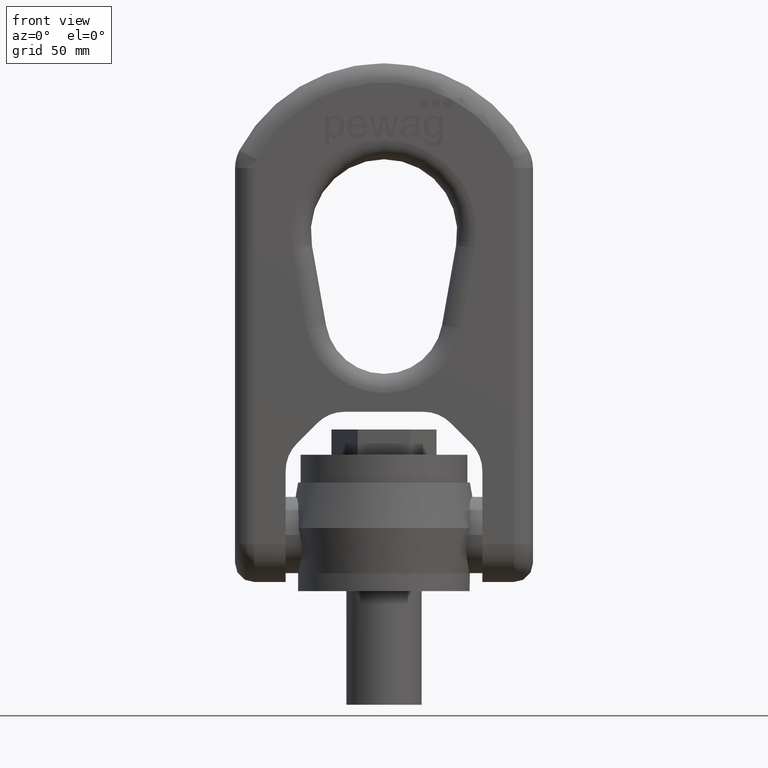
[diagram: clean part render]
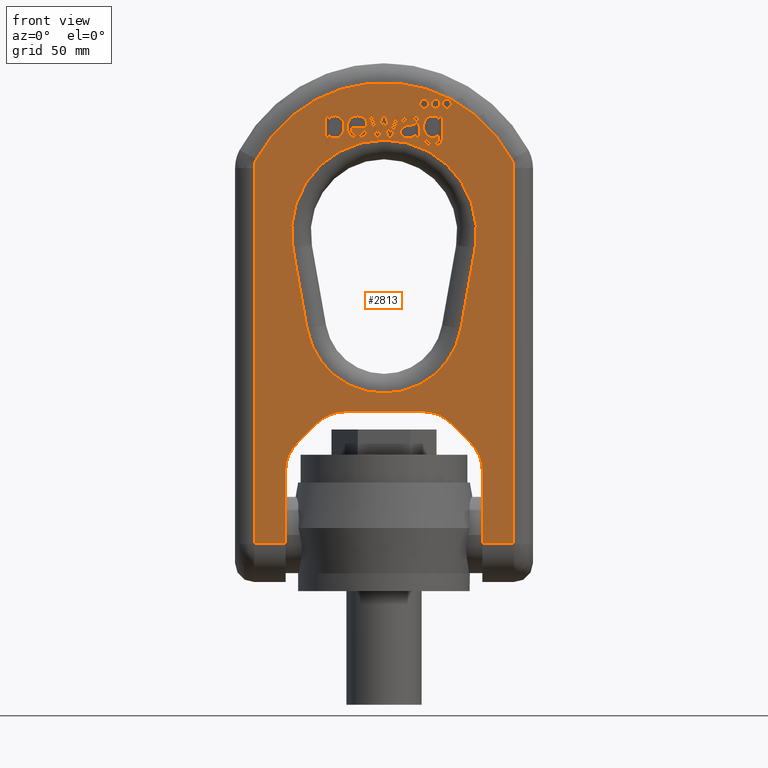
[diagram: same view with one face highlighted and labeled with its STEP entity id]
A machine part, front view. The second image highlights one B-rep face of the part: STEP entity #2813.
In plain terms, the highlighted planar face has unit normal (0, -1, 0).
Its self-contained STEP definition (entity closure, byte-faithful):
#303=B_SPLINE_CURVE_WITH_KNOTS('',3,(#7105,#7106,#7107,#7108),
 .UNSPECIFIED.,.F.,.F.,(4,4),(0.,1.),.UNSPECIFIED.);
#304=B_SPLINE_CURVE_WITH_KNOTS('',3,(#7110,#7111,#7112,#7113,#7114,#7115,
#7116,#7117,#7118,#7119),.UNSPECIFIED.,.F.,.F.,(4,2,2,2,4),(0.,0.228358481914092,
0.466434346037287,0.703045305681466,1.),.UNSPECIFIED.);
#305=B_SPLINE_CURVE_WITH_KNOTS('',3,(#7121,#7122,#7123,#7124),
 .UNSPECIFIED.,.F.,.F.,(4,4),(0.,1.),.UNSPECIFIED.);
#306=B_SPLINE_CURVE_WITH_KNOTS('',3,(#7128,#7129,#7130,#7131),
 .UNSPECIFIED.,.F.,.F.,(4,4),(0.,1.),.UNSPECIFIED.);
#307=B_SPLINE_CURVE_WITH_KNOTS('',3,(#7133,#7134,#7135,#7136),
 .UNSPECIFIED.,.F.,.F.,(4,4),(0.,1.),.UNSPECIFIED.);
#308=B_SPLINE_CURVE_WITH_KNOTS('',3,(#7138,#7139,#7140,#7141),
 .UNSPECIFIED.,.F.,.F.,(4,4),(0.,1.),.UNSPECIFIED.);
#309=B_SPLINE_CURVE_WITH_KNOTS('',3,(#7143,#7144,#7145,#7146),
 .UNSPECIFIED.,.F.,.F.,(4,4),(0.,1.),.UNSPECIFIED.);
#310=B_SPLINE_CURVE_WITH_KNOTS('',3,(#7148,#7149,#7150,#7151,#7152,#7153),
 .UNSPECIFIED.,.F.,.F.,(4,2,4),(0.,0.559782608695654,1.),.UNSPECIFIED.);
#311=B_SPLINE_CURVE_WITH_KNOTS('',3,(#7155,#7156,#7157,#7158),
 .UNSPECIFIED.,.F.,.F.,(4,4),(0.,1.),.UNSPECIFIED.);
#312=B_SPLINE_CURVE_WITH_KNOTS('',3,(#7162,#7163,#7164,#7165),
 .UNSPECIFIED.,.F.,.F.,(4,4),(0.,1.),.UNSPECIFIED.);
#313=B_SPLINE_CURVE_WITH_KNOTS('',3,(#7167,#7168,#7169,#7170,#7171,#7172),
 .UNSPECIFIED.,.F.,.F.,(4,2,4),(0.,0.476123595505615,1.),.UNSPECIFIED.);
#314=B_SPLINE_CURVE_WITH_KNOTS('',3,(#7174,#7175,#7176,#7177),
 .UNSPECIFIED.,.F.,.F.,(4,4),(0.,1.),.UNSPECIFIED.);
#315=B_SPLINE_CURVE_WITH_KNOTS('',3,(#7179,#7180,#7181,#7182,#7183,#7184,
#7185,#7186),.UNSPECIFIED.,.F.,.F.,(4,2,2,4),(0.,0.472355769230771,0.730769230769235,
1.),.UNSPECIFIED.);
#316=B_SPLINE_CURVE_WITH_KNOTS('',3,(#7188,#7189,#7190,#7191),
 .UNSPECIFIED.,.F.,.F.,(4,4),(0.,1.),.UNSPECIFIED.);
#317=B_SPLINE_CURVE_WITH_KNOTS('',3,(#7199,#7200,#7201,#7202),
 .UNSPECIFIED.,.F.,.F.,(4,4),(0.,1.),.UNSPECIFIED.);
#318=B_SPLINE_CURVE_WITH_KNOTS('',3,(#7204,#7205,#7206,#7207),
 .UNSPECIFIED.,.F.,.F.,(4,4),(0.,1.),.UNSPECIFIED.);
#319=B_SPLINE_CURVE_WITH_KNOTS('',3,(#7229,#7230,#7231,#7232),
 .UNSPECIFIED.,.F.,.F.,(4,4),(0.,1.),.UNSPECIFIED.);
#320=B_SPLINE_CURVE_WITH_KNOTS('',3,(#7242,#7243,#7244,#7245),
 .UNSPECIFIED.,.F.,.F.,(4,4),(0.,1.),.UNSPECIFIED.);
#321=B_SPLINE_CURVE_WITH_KNOTS('',3,(#7247,#7248,#7249,#7250,#7251,#7252),
 .UNSPECIFIED.,.F.,.F.,(4,2,4),(0.,0.434679334916865,1.),.UNSPECIFIED.);
#322=B_SPLINE_CURVE_WITH_KNOTS('',3,(#7254,#7255,#7256,#7257),
 .UNSPECIFIED.,.F.,.F.,(4,4),(0.,1.),.UNSPECIFIED.);
#323=B_SPLINE_CURVE_WITH_KNOTS('',3,(#7261,#7262,#7263,#7264),
 .UNSPECIFIED.,.F.,.F.,(4,4),(0.,1.),.UNSPECIFIED.);
#324=B_SPLINE_CURVE_WITH_KNOTS('',3,(#7266,#7267,#7268,#7269,#7270,#7271),
 .UNSPECIFIED.,.F.,.F.,(4,2,4),(0.,0.570469798657719,1.),.UNSPECIFIED.);
#325=B_SPLINE_CURVE_WITH_KNOTS('',3,(#7273,#7274,#7275,#7276,#7277,#7278,
#7279,#7280,#7281,#7282,#7283,#7284),.UNSPECIFIED.,.F.,.F.,(4,2,2,2,2,4),
(0.,0.122570626594233,0.245141253188469,0.495637533752417,0.746133814316361,
1.),.UNSPECIFIED.);
#326=B_SPLINE_CURVE_WITH_KNOTS('',3,(#7286,#7287,#7288,#7289),
 .UNSPECIFIED.,.F.,.F.,(4,4),(0.,1.),.UNSPECIFIED.);
#327=B_SPLINE_CURVE_WITH_KNOTS('',3,(#7290,#7291,#7292,#7293),
 .UNSPECIFIED.,.F.,.F.,(4,4),(0.,1.),.UNSPECIFIED.);
#328=B_SPLINE_CURVE_WITH_KNOTS('',3,(#7296,#7297,#7298,#7299),
 .UNSPECIFIED.,.F.,.F.,(4,4),(0.,1.),.UNSPECIFIED.);
#329=B_SPLINE_CURVE_WITH_KNOTS('',3,(#7301,#7302,#7303,#7304,#7305,#7306,
#7307,#7308,#7309,#7310),.UNSPECIFIED.,.F.,.F.,(4,2,2,2,4),(0.,0.230139294836347,
0.492074150143504,0.754009005450667,1.),.UNSPECIFIED.);
#330=B_SPLINE_CURVE_WITH_KNOTS('',3,(#7327,#7328,#7329,#7330,#7331,#7332),
 .UNSPECIFIED.,.F.,.F.,(4,2,4),(0.,0.329498767460961,1.),.UNSPECIFIED.);
#331=B_SPLINE_CURVE_WITH_KNOTS('',3,(#7335,#7336,#7337,#7338,#7339,#7340,
#7341,#7342),.UNSPECIFIED.,.F.,.F.,(4,2,2,4),(0.,0.361028692437345,0.681441656975491,
1.),.UNSPECIFIED.);
#332=B_SPLINE_CURVE_WITH_KNOTS('',3,(#7344,#7345,#7346,#7347),
 .UNSPECIFIED.,.F.,.F.,(4,4),(0.,1.),.UNSPECIFIED.);
#333=B_SPLINE_CURVE_WITH_KNOTS('',3,(#7351,#7352,#7353,#7354),
 .UNSPECIFIED.,.F.,.F.,(4,4),(0.,1.),.UNSPECIFIED.);
#334=B_SPLINE_CURVE_WITH_KNOTS('',3,(#7356,#7357,#7358,#7359,#7360,#7361),
 .UNSPECIFIED.,.F.,.F.,(4,2,4),(0.,0.55580357142857,1.),.UNSPECIFIED.);
#335=B_SPLINE_CURVE_WITH_KNOTS('',3,(#7363,#7364,#7365,#7366,#7367,#7368),
 .UNSPECIFIED.,.F.,.F.,(4,2,4),(0.,0.499999999999998,1.),.UNSPECIFIED.);
#336=B_SPLINE_CURVE_WITH_KNOTS('',3,(#7370,#7371,#7372,#7373,#7374,#7375,
#7376,#7377,#7378,#7379,#7380,#7381,#7382,#7383),.UNSPECIFIED.,.F.,.F.,
(4,2,2,2,2,2,4),(0.,0.152201346045993,0.327187324733602,0.502173303421207,
0.67631800336512,0.850462703309032,1.),.UNSPECIFIED.);
#1765=LINE('',#7036,#2073);
#1768=LINE('',#7045,#2076);
#1770=LINE('',#7054,#2078);
#1773=LINE('',#7067,#2081);
#1774=LINE('',#7069,#2082);
#1775=LINE('',#7074,#2083);
#1776=LINE('',#7077,#2084);
#1777=LINE('',#7085,#2085);
#1778=LINE('',#7086,#2086);
#1779=LINE('',#7089,#2087);
#1780=LINE('',#7093,#2088);
#1781=LINE('',#7097,#2089);
#1782=LINE('',#7101,#2090);
#1783=LINE('',#7102,#2091);
#1784=LINE('',#7126,#2092);
#1785=LINE('',#7160,#2093);
#1786=LINE('',#7192,#2094);
#1787=LINE('',#7195,#2095);
#1788=LINE('',#7197,#2096);
#1789=LINE('',#7209,#2097);
#1790=LINE('',#7211,#2098);
#1791=LINE('',#7213,#2099);
#1792=LINE('',#7215,#2100);
#1793=LINE('',#7217,#2101);
#1794=LINE('',#7219,#2102);
#1795=LINE('',#7221,#2103);
#1796=LINE('',#7223,#2104);
#1797=LINE('',#7225,#2105);
#1798=LINE('',#7227,#2106);
#1799=LINE('',#7234,#2107);
#1800=LINE('',#7236,#2108);
#1801=LINE('',#7238,#2109);
#1802=LINE('',#7239,#2110);
#1803=LINE('',#7259,#2111);
#1804=LINE('',#7312,#2112);
#1805=LINE('',#7314,#2113);
#1806=LINE('',#7316,#2114);
#1807=LINE('',#7318,#2115);
#1808=LINE('',#7320,#2116);
#1809=LINE('',#7322,#2117);
#1810=LINE('',#7324,#2118);
#1811=LINE('',#7349,#2119);
#1812=LINE('',#7385,#2120);
#1813=LINE('',#7387,#2121);
#1814=LINE('',#7389,#2122);
#2073=VECTOR('',#6164,1.);
#2076=VECTOR('',#6171,1.);
#2078=VECTOR('',#6179,1.);
#2081=VECTOR('',#6190,1.);
#2082=VECTOR('',#6193,1.);
#2083=VECTOR('',#6196,1.);
#2084=VECTOR('',#6199,1.);
#2085=VECTOR('',#6206,1.);
#2086=VECTOR('',#6207,1.);
#2087=VECTOR('',#6210,1.);
#2088=VECTOR('',#6213,1.);
#2089=VECTOR('',#6216,1.);
#2090=VECTOR('',#6219,1.);
#2091=VECTOR('',#6220,1.);
#2092=VECTOR('',#6221,1.);
#2093=VECTOR('',#6222,1.);
#2094=VECTOR('',#6223,1.);
#2095=VECTOR('',#6224,1.);
#2096=VECTOR('',#6225,1.);
#2097=VECTOR('',#6226,1.);
#2098=VECTOR('',#6227,1.);
#2099=VECTOR('',#6228,1.);
#2100=VECTOR('',#6229,1.);
#2101=VECTOR('',#6230,1.);
#2102=VECTOR('',#6231,1.);
#2103=VECTOR('',#6232,1.);
#2104=VECTOR('',#6233,1.);
#2105=VECTOR('',#6234,1.);
#2106=VECTOR('',#6235,1.);
#2107=VECTOR('',#6236,1.);
#2108=VECTOR('',#6237,1.);
#2109=VECTOR('',#6238,1.);
#2110=VECTOR('',#6239,1.);
#2111=VECTOR('',#6240,1.);
#2112=VECTOR('',#6241,1.);
#2113=VECTOR('',#6242,1.);
#2114=VECTOR('',#6243,1.);
#2115=VECTOR('',#6244,1.);
#2116=VECTOR('',#6245,1.);
#2117=VECTOR('',#6246,1.);
#2118=VECTOR('',#6247,1.);
#2119=VECTOR('',#6250,1.);
#2120=VECTOR('',#6251,1.);
#2121=VECTOR('',#6252,1.);
#2122=VECTOR('',#6253,1.);
#2685=PLANE('',#5881);
#2813=ADVANCED_FACE('',(#3087,#3088,#3089,#3090,#3091,#3092,#3093,#3094,
#3095,#3096),#2685,.T.);
#3087=FACE_BOUND('',#3173,.T.);
#3088=FACE_BOUND('',#3174,.T.);
#3089=FACE_BOUND('',#3175,.T.);
#3090=FACE_BOUND('',#3176,.T.);
#3091=FACE_BOUND('',#3177,.T.);
#3092=FACE_BOUND('',#3178,.T.);
#3093=FACE_BOUND('',#3179,.T.);
#3094=FACE_BOUND('',#3180,.T.);
#3095=FACE_BOUND('',#3181,.T.);
#3096=FACE_BOUND('',#3182,.T.);
#3173=EDGE_LOOP('',(#3537,#3538,#3539,#3540));
#3174=EDGE_LOOP('',(#3541,#3542,#3543,#3544,#3545,#3546,#3547,#3548,#3549,
#3550,#3551,#3552,#3553,#3554,#3555,#3556,#3557,#3558));
#3175=EDGE_LOOP('',(#3559,#3560,#3561,#3562,#3563,#3564,#3565,#3566,#3567,
#3568,#3569,#3570,#3571,#3572,#3573,#3574,#3575));
#3176=EDGE_LOOP('',(#3576,#3577,#3578,#3579,#3580,#3581,#3582,#3583,#3584,
#3585,#3586,#3587,#3588,#3589,#3590,#3591,#3592,#3593,#3594));
#3177=EDGE_LOOP('',(#3595,#3596,#3597,#3598,#3599,#3600,#3601,#3602,#3603));
#3178=EDGE_LOOP('',(#3604,#3605,#3606,#3607,#3608,#3609,#3610,#3611,#3612,
#3613));
#3179=EDGE_LOOP('',(#3614));
#3180=EDGE_LOOP('',(#3615,#3616,#3617,#3618,#3619,#3620,#3621,#3622,#3623,
#3624,#3625));
#3181=EDGE_LOOP('',(#3626));
#3182=EDGE_LOOP('',(#3627));
#3537=ORIENTED_EDGE('',*,*,#5176,.T.);
#3538=ORIENTED_EDGE('',*,*,#5177,.T.);
#3539=ORIENTED_EDGE('',*,*,#5178,.T.);
#3540=ORIENTED_EDGE('',*,*,#5179,.T.);
#3541=ORIENTED_EDGE('',*,*,#5175,.T.);
#3542=ORIENTED_EDGE('',*,*,#5180,.T.);
#3543=ORIENTED_EDGE('',*,*,#5181,.T.);
#3544=ORIENTED_EDGE('',*,*,#5182,.T.);
#3545=ORIENTED_EDGE('',*,*,#5183,.T.);
#3546=ORIENTED_EDGE('',*,*,#5184,.T.);
#3547=ORIENTED_EDGE('',*,*,#5169,.T.);
#3548=ORIENTED_EDGE('',*,*,#5185,.T.);
#3549=ORIENTED_EDGE('',*,*,#5161,.T.);
#3550=ORIENTED_EDGE('',*,*,#5186,.T.);
#3551=ORIENTED_EDGE('',*,*,#5187,.T.);
#3552=ORIENTED_EDGE('',*,*,#5188,.T.);
#3553=ORIENTED_EDGE('',*,*,#5189,.T.);
#3554=ORIENTED_EDGE('',*,*,#5190,.T.);
#3555=ORIENTED_EDGE('',*,*,#5191,.T.);
#3556=ORIENTED_EDGE('',*,*,#5192,.T.);
#3557=ORIENTED_EDGE('',*,*,#5193,.T.);
#3558=ORIENTED_EDGE('',*,*,#5165,.T.);
#3559=ORIENTED_EDGE('',*,*,#5194,.F.);
#3560=ORIENTED_EDGE('',*,*,#5195,.F.);
#3561=ORIENTED_EDGE('',*,*,#5196,.F.);
#3562=ORIENTED_EDGE('',*,*,#5197,.F.);
#3563=ORIENTED_EDGE('',*,*,#5198,.F.);
#3564=ORIENTED_EDGE('',*,*,#5199,.F.);
#3565=ORIENTED_EDGE('',*,*,#5200,.F.);
#3566=ORIENTED_EDGE('',*,*,#5201,.F.);
#3567=ORIENTED_EDGE('',*,*,#5202,.F.);
#3568=ORIENTED_EDGE('',*,*,#5203,.F.);
#3569=ORIENTED_EDGE('',*,*,#5204,.F.);
#3570=ORIENTED_EDGE('',*,*,#5205,.F.);
#3571=ORIENTED_EDGE('',*,*,#5206,.F.);
#3572=ORIENTED_EDGE('',*,*,#5207,.F.);
#3573=ORIENTED_EDGE('',*,*,#5208,.F.);
#3574=ORIENTED_EDGE('',*,*,#5209,.F.);
#3575=ORIENTED_EDGE('',*,*,#5210,.F.);
#3576=ORIENTED_EDGE('',*,*,#5211,.F.);
#3577=ORIENTED_EDGE('',*,*,#5212,.F.);
#3578=ORIENTED_EDGE('',*,*,#5213,.F.);
#3579=ORIENTED_EDGE('',*,*,#5214,.F.);
#3580=ORIENTED_EDGE('',*,*,#5215,.F.);
#3581=ORIENTED_EDGE('',*,*,#5216,.F.);
#3582=ORIENTED_EDGE('',*,*,#5217,.F.);
#3583=ORIENTED_EDGE('',*,*,#5218,.F.);
#3584=ORIENTED_EDGE('',*,*,#5219,.F.);
#3585=ORIENTED_EDGE('',*,*,#5220,.F.);
#3586=ORIENTED_EDGE('',*,*,#5221,.F.);
#3587=ORIENTED_EDGE('',*,*,#5222,.F.);
#3588=ORIENTED_EDGE('',*,*,#5223,.F.);
#3589=ORIENTED_EDGE('',*,*,#5224,.F.);
#3590=ORIENTED_EDGE('',*,*,#5225,.F.);
#3591=ORIENTED_EDGE('',*,*,#5226,.F.);
#3592=ORIENTED_EDGE('',*,*,#5227,.F.);
#3593=ORIENTED_EDGE('',*,*,#5228,.F.);
#3594=ORIENTED_EDGE('',*,*,#5229,.F.);
#3595=ORIENTED_EDGE('',*,*,#5230,.F.);
#3596=ORIENTED_EDGE('',*,*,#5231,.F.);
#3597=ORIENTED_EDGE('',*,*,#5232,.F.);
#3598=ORIENTED_EDGE('',*,*,#5233,.F.);
#3599=ORIENTED_EDGE('',*,*,#5234,.F.);
#3600=ORIENTED_EDGE('',*,*,#5235,.F.);
#3601=ORIENTED_EDGE('',*,*,#5236,.F.);
#3602=ORIENTED_EDGE('',*,*,#5237,.F.);
#3603=ORIENTED_EDGE('',*,*,#5238,.F.);
#3604=ORIENTED_EDGE('',*,*,#5239,.F.);
#3605=ORIENTED_EDGE('',*,*,#5240,.F.);
#3606=ORIENTED_EDGE('',*,*,#5241,.F.);
#3607=ORIENTED_EDGE('',*,*,#5242,.F.);
#3608=ORIENTED_EDGE('',*,*,#5243,.F.);
#3609=ORIENTED_EDGE('',*,*,#5244,.F.);
#3610=ORIENTED_EDGE('',*,*,#5245,.F.);
#3611=ORIENTED_EDGE('',*,*,#5246,.F.);
#3612=ORIENTED_EDGE('',*,*,#5247,.F.);
#3613=ORIENTED_EDGE('',*,*,#5248,.F.);
#3614=ORIENTED_EDGE('',*,*,#5249,.F.);
#3615=ORIENTED_EDGE('',*,*,#5250,.F.);
#3616=ORIENTED_EDGE('',*,*,#5251,.F.);
#3617=ORIENTED_EDGE('',*,*,#5252,.F.);
#3618=ORIENTED_EDGE('',*,*,#5253,.F.);
#3619=ORIENTED_EDGE('',*,*,#5254,.F.);
#3620=ORIENTED_EDGE('',*,*,#5255,.F.);
#3621=ORIENTED_EDGE('',*,*,#5256,.F.);
#3622=ORIENTED_EDGE('',*,*,#5257,.F.);
#3623=ORIENTED_EDGE('',*,*,#5258,.F.);
#3624=ORIENTED_EDGE('',*,*,#5259,.F.);
#3625=ORIENTED_EDGE('',*,*,#5260,.F.);
#3626=ORIENTED_EDGE('',*,*,#5261,.F.);
#3627=ORIENTED_EDGE('',*,*,#5262,.F.);
#4729=VERTEX_POINT('',#7037);
#4730=VERTEX_POINT('',#7038);
#4733=VERTEX_POINT('',#7046);
#4734=VERTEX_POINT('',#7047);
#4737=VERTEX_POINT('',#7055);
#4738=VERTEX_POINT('',#7056);
#4742=VERTEX_POINT('',#7066);
#4743=VERTEX_POINT('',#7070);
#4744=VERTEX_POINT('',#7071);
#4745=VERTEX_POINT('',#7073);
#4746=VERTEX_POINT('',#7075);
#4747=VERTEX_POINT('',#7078);
#4748=VERTEX_POINT('',#7080);
#4749=VERTEX_POINT('',#7082);
#4750=VERTEX_POINT('',#7084);
#4751=VERTEX_POINT('',#7088);
#4752=VERTEX_POINT('',#7090);
#4753=VERTEX_POINT('',#7092);
#4754=VERTEX_POINT('',#7094);
#4755=VERTEX_POINT('',#7096);
#4756=VERTEX_POINT('',#7098);
#4757=VERTEX_POINT('',#7100);
#4758=VERTEX_POINT('',#7103);
#4759=VERTEX_POINT('',#7104);
#4760=VERTEX_POINT('',#7109);
#4761=VERTEX_POINT('',#7120);
#4762=VERTEX_POINT('',#7125);
#4763=VERTEX_POINT('',#7127);
#4764=VERTEX_POINT('',#7132);
#4765=VERTEX_POINT('',#7137);
#4766=VERTEX_POINT('',#7142);
#4767=VERTEX_POINT('',#7147);
#4768=VERTEX_POINT('',#7154);
#4769=VERTEX_POINT('',#7159);
#4770=VERTEX_POINT('',#7161);
#4771=VERTEX_POINT('',#7166);
#4772=VERTEX_POINT('',#7173);
#4773=VERTEX_POINT('',#7178);
#4774=VERTEX_POINT('',#7187);
#4775=VERTEX_POINT('',#7193);
#4776=VERTEX_POINT('',#7194);
#4777=VERTEX_POINT('',#7196);
#4778=VERTEX_POINT('',#7198);
#4779=VERTEX_POINT('',#7203);
#4780=VERTEX_POINT('',#7208);
#4781=VERTEX_POINT('',#7210);
#4782=VERTEX_POINT('',#7212);
#4783=VERTEX_POINT('',#7214);
#4784=VERTEX_POINT('',#7216);
#4785=VERTEX_POINT('',#7218);
#4786=VERTEX_POINT('',#7220);
#4787=VERTEX_POINT('',#7222);
#4788=VERTEX_POINT('',#7224);
#4789=VERTEX_POINT('',#7226);
#4790=VERTEX_POINT('',#7228);
#4791=VERTEX_POINT('',#7233);
#4792=VERTEX_POINT('',#7235);
#4793=VERTEX_POINT('',#7237);
#4794=VERTEX_POINT('',#7240);
#4795=VERTEX_POINT('',#7241);
#4796=VERTEX_POINT('',#7246);
#4797=VERTEX_POINT('',#7253);
#4798=VERTEX_POINT('',#7258);
#4799=VERTEX_POINT('',#7260);
#4800=VERTEX_POINT('',#7265);
#4801=VERTEX_POINT('',#7272);
#4802=VERTEX_POINT('',#7285);
#4803=VERTEX_POINT('',#7294);
#4804=VERTEX_POINT('',#7295);
#4805=VERTEX_POINT('',#7300);
#4806=VERTEX_POINT('',#7311);
#4807=VERTEX_POINT('',#7313);
#4808=VERTEX_POINT('',#7315);
#4809=VERTEX_POINT('',#7317);
#4810=VERTEX_POINT('',#7319);
#4811=VERTEX_POINT('',#7321);
#4812=VERTEX_POINT('',#7323);
#4813=VERTEX_POINT('',#7326);
#4814=VERTEX_POINT('',#7333);
#4815=VERTEX_POINT('',#7334);
#4816=VERTEX_POINT('',#7343);
#4817=VERTEX_POINT('',#7348);
#4818=VERTEX_POINT('',#7350);
#4819=VERTEX_POINT('',#7355);
#4820=VERTEX_POINT('',#7362);
#4821=VERTEX_POINT('',#7369);
#4822=VERTEX_POINT('',#7384);
#4823=VERTEX_POINT('',#7386);
#4824=VERTEX_POINT('',#7388);
#4825=VERTEX_POINT('',#7391);
#4826=VERTEX_POINT('',#7393);
#5161=EDGE_CURVE('',#4729,#4730,#1765,.T.);
#5165=EDGE_CURVE('',#4733,#4734,#1768,.T.);
#5169=EDGE_CURVE('',#4737,#4738,#1770,.T.);
#5175=EDGE_CURVE('',#4734,#4742,#1773,.T.);
#5176=EDGE_CURVE('',#4743,#4744,#1774,.T.);
#5177=EDGE_CURVE('',#4744,#4745,#5763,.T.);
#5178=EDGE_CURVE('',#4745,#4746,#1775,.T.);
#5179=EDGE_CURVE('',#4746,#4743,#5764,.T.);
#5180=EDGE_CURVE('',#4742,#4747,#1776,.T.);
#5181=EDGE_CURVE('',#4747,#4748,#5765,.T.);
#5182=EDGE_CURVE('',#4748,#4749,#5766,.T.);
#5183=EDGE_CURVE('',#4749,#4750,#5767,.T.);
#5184=EDGE_CURVE('',#4750,#4737,#1777,.T.);
#5185=EDGE_CURVE('',#4738,#4729,#1778,.T.);
#5186=EDGE_CURVE('',#4730,#4751,#5768,.T.);
#5187=EDGE_CURVE('',#4751,#4752,#1779,.T.);
#5188=EDGE_CURVE('',#4752,#4753,#5769,.T.);
#5189=EDGE_CURVE('',#4753,#4754,#1780,.T.);
#5190=EDGE_CURVE('',#4754,#4755,#5770,.T.);
#5191=EDGE_CURVE('',#4755,#4756,#1781,.T.);
#5192=EDGE_CURVE('',#4756,#4757,#5771,.T.);
#5193=EDGE_CURVE('',#4757,#4733,#1782,.T.);
#5194=EDGE_CURVE('',#4758,#4759,#1783,.T.);
#5195=EDGE_CURVE('',#4760,#4758,#303,.T.);
#5196=EDGE_CURVE('',#4761,#4760,#304,.T.);
#5197=EDGE_CURVE('',#4762,#4761,#305,.T.);
#5198=EDGE_CURVE('',#4763,#4762,#1784,.T.);
#5199=EDGE_CURVE('',#4764,#4763,#306,.T.);
#5200=EDGE_CURVE('',#4765,#4764,#307,.T.);
#5201=EDGE_CURVE('',#4766,#4765,#308,.T.);
#5202=EDGE_CURVE('',#4767,#4766,#309,.T.);
#5203=EDGE_CURVE('',#4768,#4767,#310,.T.);
#5204=EDGE_CURVE('',#4769,#4768,#311,.T.);
#5205=EDGE_CURVE('',#4770,#4769,#1785,.T.);
#5206=EDGE_CURVE('',#4771,#4770,#312,.T.);
#5207=EDGE_CURVE('',#4772,#4771,#313,.T.);
#5208=EDGE_CURVE('',#4773,#4772,#314,.T.);
#5209=EDGE_CURVE('',#4774,#4773,#315,.T.);
#5210=EDGE_CURVE('',#4759,#4774,#316,.T.);
#5211=EDGE_CURVE('',#4775,#4776,#1786,.T.);
#5212=EDGE_CURVE('',#4777,#4775,#1787,.T.);
#5213=EDGE_CURVE('',#4778,#4777,#1788,.T.);
#5214=EDGE_CURVE('',#4779,#4778,#317,.T.);
#5215=EDGE_CURVE('',#4780,#4779,#318,.T.);
#5216=EDGE_CURVE('',#4781,#4780,#1789,.T.);
#5217=EDGE_CURVE('',#4782,#4781,#1790,.T.);
#5218=EDGE_CURVE('',#4783,#4782,#1791,.T.);
#5219=EDGE_CURVE('',#4784,#4783,#1792,.T.);
#5220=EDGE_CURVE('',#4785,#4784,#1793,.T.);
#5221=EDGE_CURVE('',#4786,#4785,#1794,.T.);
#5222=EDGE_CURVE('',#4787,#4786,#1795,.T.);
#5223=EDGE_CURVE('',#4788,#4787,#1796,.T.);
#5224=EDGE_CURVE('',#4789,#4788,#1797,.T.);
#5225=EDGE_CURVE('',#4790,#4789,#1798,.T.);
#5226=EDGE_CURVE('',#4791,#4790,#319,.T.);
#5227=EDGE_CURVE('',#4792,#4791,#1799,.T.);
#5228=EDGE_CURVE('',#4793,#4792,#1800,.T.);
#5229=EDGE_CURVE('',#4776,#4793,#1801,.T.);
#5230=EDGE_CURVE('',#4794,#4795,#1802,.T.);
#5231=EDGE_CURVE('',#4796,#4794,#320,.T.);
#5232=EDGE_CURVE('',#4797,#4796,#321,.T.);
#5233=EDGE_CURVE('',#4798,#4797,#322,.T.);
#5234=EDGE_CURVE('',#4799,#4798,#1803,.T.);
#5235=EDGE_CURVE('',#4800,#4799,#323,.T.);
#5236=EDGE_CURVE('',#4801,#4800,#324,.T.);
#5237=EDGE_CURVE('',#4802,#4801,#325,.T.);
#5238=EDGE_CURVE('',#4795,#4802,#326,.T.);
#5239=EDGE_CURVE('',#4803,#4804,#327,.T.);
#5240=EDGE_CURVE('',#4805,#4803,#328,.T.);
#5241=EDGE_CURVE('',#4806,#4805,#329,.T.);
#5242=EDGE_CURVE('',#4807,#4806,#1804,.T.);
#5243=EDGE_CURVE('',#4808,#4807,#1805,.T.);
#5244=EDGE_CURVE('',#4809,#4808,#1806,.T.);
#5245=EDGE_CURVE('',#4810,#4809,#1807,.T.);
#5246=EDGE_CURVE('',#4811,#4810,#1808,.T.);
#5247=EDGE_CURVE('',#4812,#4811,#1809,.T.);
#5248=EDGE_CURVE('',#4804,#4812,#1810,.T.);
#5249=EDGE_CURVE('',#4813,#4813,#5772,.T.);
#5250=EDGE_CURVE('',#4814,#4815,#330,.T.);
#5251=EDGE_CURVE('',#4816,#4814,#331,.T.);
#5252=EDGE_CURVE('',#4817,#4816,#332,.T.);
#5253=EDGE_CURVE('',#4818,#4817,#1811,.T.);
#5254=EDGE_CURVE('',#4819,#4818,#333,.T.);
#5255=EDGE_CURVE('',#4820,#4819,#334,.T.);
#5256=EDGE_CURVE('',#4821,#4820,#335,.T.);
#5257=EDGE_CURVE('',#4822,#4821,#336,.T.);
#5258=EDGE_CURVE('',#4823,#4822,#1812,.T.);
#5259=EDGE_CURVE('',#4824,#4823,#1813,.T.);
#5260=EDGE_CURVE('',#4815,#4824,#1814,.T.);
#5261=EDGE_CURVE('',#4825,#4825,#5773,.T.);
#5262=EDGE_CURVE('',#4826,#4826,#5774,.T.);
#5763=CIRCLE('',#5869,36.6);
#5764=CIRCLE('',#5870,30.9262655562737);
#5765=CIRCLE('',#5871,7.6);
#5766=CIRCLE('',#5872,57.2026315789474);
#5767=CIRCLE('',#5873,7.6);
#5768=CIRCLE('',#5874,15.2);
#5769=CIRCLE('',#5875,15.2);
#5770=CIRCLE('',#5876,15.2);
#5771=CIRCLE('',#5877,15.2);
#5772=CIRCLE('',#5878,1.74);
#5773=CIRCLE('',#5879,1.74);
#5774=CIRCLE('',#5880,1.74);
#5869=AXIS2_PLACEMENT_3D('',#7072,#6194,#6195);
#5870=AXIS2_PLACEMENT_3D('',#7076,#6197,#6198);
#5871=AXIS2_PLACEMENT_3D('',#7079,#6200,#6201);
#5872=AXIS2_PLACEMENT_3D('',#7081,#6202,#6203);
#5873=AXIS2_PLACEMENT_3D('',#7083,#6204,#6205);
#5874=AXIS2_PLACEMENT_3D('',#7087,#6208,#6209);
#5875=AXIS2_PLACEMENT_3D('',#7091,#6211,#6212);
#5876=AXIS2_PLACEMENT_3D('',#7095,#6214,#6215);
#5877=AXIS2_PLACEMENT_3D('',#7099,#6217,#6218);
#5878=AXIS2_PLACEMENT_3D('',#7325,#6248,#6249);
#5879=AXIS2_PLACEMENT_3D('',#7390,#6254,#6255);
#5880=AXIS2_PLACEMENT_3D('',#7392,#6256,#6257);
#5881=AXIS2_PLACEMENT_3D('',#7394,#6258,#6259);
#6164=DIRECTION('',(1.28498035257541E-16,0.,1.));
#6171=DIRECTION('',(1.28498035257541E-16,0.,-1.));
#6179=DIRECTION('',(1.,0.,-1.17608371252665E-15));
#6190=DIRECTION('',(1.,0.,-1.17608371252665E-15));
#6193=DIRECTION('',(-0.173648177666931,0.,0.984807753012208));
#6194=DIRECTION('',(0.,1.,0.));
#6195=DIRECTION('',(0.,0.,-1.));
#6196=DIRECTION('',(-0.173648177666931,0.,-0.984807753012208));
#6197=DIRECTION('',(0.,1.,0.));
#6198=DIRECTION('',(0.,0.,-1.));
#6199=DIRECTION('',(-8.28524645242654E-17,0.,1.));
#6200=DIRECTION('',(0.,-1.,0.));
#6201=DIRECTION('',(0.,0.,-0.999999999999999));
#6202=DIRECTION('',(0.,-1.,0.));
#6203=DIRECTION('',(0.,0.,-1.));
#6204=DIRECTION('',(0.,-1.,0.));
#6205=DIRECTION('',(0.,0.,-0.999999999999999));
#6206=DIRECTION('',(-8.28524645242654E-17,0.,-1.));
#6207=DIRECTION('',(1.28498035257541E-16,0.,1.));
#6208=DIRECTION('',(0.,1.,0.));
#6209=DIRECTION('',(0.,0.,-1.));
#6210=DIRECTION('',(0.707106781186548,0.,0.707106781186547));
#6211=DIRECTION('',(0.,1.,0.));
#6212=DIRECTION('',(0.,0.,-1.));
#6213=DIRECTION('',(1.,0.,0.));
#6214=DIRECTION('',(0.,1.,0.));
#6215=DIRECTION('',(0.,0.,-1.));
#6216=DIRECTION('',(0.707106781186548,0.,-0.707106781186547));
#6217=DIRECTION('',(0.,1.,0.));
#6218=DIRECTION('',(0.,0.,-1.));
#6219=DIRECTION('',(1.28498035257541E-16,0.,-1.));
#6220=DIRECTION('',(1.,0.,0.));
#6221=DIRECTION('',(-0.989370262977938,0.,-0.14541830261341));
#6222=DIRECTION('',(0.991928985003781,0.,-0.126794671454947));
#6223=DIRECTION('',(0.304245570453574,0.,0.952593634693923));
#6224=DIRECTION('',(1.,0.,0.));
#6225=DIRECTION('',(0.259135455314436,0.,-0.965840988879112));
#6226=DIRECTION('',(1.,0.,0.));
#6227=DIRECTION('',(0.254367653151694,0.,0.967107593305988));
#6228=DIRECTION('',(1.,0.,0.));
#6229=DIRECTION('',(0.298320908470945,0.,-0.954465628280595));
#6230=DIRECTION('',(-1.,0.,0.));
#6231=DIRECTION('',(-0.269463722620021,0.,0.963010541059526));
#6232=DIRECTION('',(-0.247736970080365,0.,-0.968827329122894));
#6233=DIRECTION('',(-0.266059563516178,0.,-0.96395659065208));
#6234=DIRECTION('',(-1.,0.,0.));
#6235=DIRECTION('',(-0.253070161005813,0.,0.96744792811215));
#6236=DIRECTION('',(-1.,0.,0.));
#6237=DIRECTION('',(-0.287282618696352,0.,-0.957845862858407));
#6238=DIRECTION('',(-1.,0.,0.));
#6239=DIRECTION('',(1.,0.,0.));
#6240=DIRECTION('',(-0.992687288142562,0.,0.120714323757234));
#6241=DIRECTION('',(1.,0.,0.));
#6242=DIRECTION('',(0.,0.,1.));
#6243=DIRECTION('',(1.,0.,0.));
#6244=DIRECTION('',(0.,0.,-1.));
#6245=DIRECTION('',(-1.,0.,0.));
#6246=DIRECTION('',(0.,0.,1.));
#6247=DIRECTION('',(-1.,0.,0.));
#6248=DIRECTION('',(0.,-1.,0.));
#6249=DIRECTION('',(0.,0.,-0.999999999999994));
#6250=DIRECTION('',(-0.988666662925712,0.,0.150127377980622));
#6251=DIRECTION('',(-1.,0.,0.));
#6252=DIRECTION('',(0.,0.,-1.));
#6253=DIRECTION('',(-1.,0.,0.));
#6254=DIRECTION('',(0.,-1.,0.));
#6255=DIRECTION('',(0.,0.,-0.999999999999994));
#6256=DIRECTION('',(0.,-1.,0.));
#6257=DIRECTION('',(0.,0.,-0.999999999999994));
#6258=DIRECTION('',(0.,-1.,0.));
#6259=DIRECTION('',(0.,0.,-1.));
#7036=CARTESIAN_POINT('',(-38.94,-15.2,144.197368421053));
#7037=CARTESIAN_POINT('',(-38.94,-15.2,22.2));
#7038=CARTESIAN_POINT('',(-38.94,-15.2,47.703953851929));
#7045=CARTESIAN_POINT('',(38.94,-15.2,144.197368421053));
#7046=CARTESIAN_POINT('',(38.94,-15.2,22.2));
#7047=CARTESIAN_POINT('',(38.94,-15.2,18.7));
#7054=CARTESIAN_POINT('',(59.,-15.2,18.6999999999999));
#7055=CARTESIAN_POINT('',(-51.4,-15.2,18.7000000000001));
#7056=CARTESIAN_POINT('',(-38.94,-15.1999999999999,18.7));
#7066=CARTESIAN_POINT('',(51.4,-15.2,18.6999999999999));
#7067=CARTESIAN_POINT('',(59.,-15.2,18.6999999999999));
#7069=CARTESIAN_POINT('',(-36.0439637602468,-15.2,135.64447669739));
#7070=CARTESIAN_POINT('',(-30.4564260915328,-15.2,103.955975900383));
#7071=CARTESIAN_POINT('',(-36.0439637602468,-15.2,135.64447669739));
#7072=CARTESIAN_POINT('',(0.,-15.2,142.));
#7073=CARTESIAN_POINT('',(36.0439637602468,-15.2,135.64447669739));
#7074=CARTESIAN_POINT('',(30.4564260915328,-15.2,103.955975900383));
#7075=CARTESIAN_POINT('',(30.4564260915328,-15.2,103.955975900383));
#7076=CARTESIAN_POINT('',(0.,-15.2,109.326265556274));
#7077=CARTESIAN_POINT('',(51.4,-15.2,167.477855090295));
#7078=CARTESIAN_POINT('',(51.4,-15.2,167.477855090295));
#7079=CARTESIAN_POINT('',(43.8,-15.2,167.477855090295));
#7080=CARTESIAN_POINT('',(50.5109342670699,-15.2,171.044837184877));
#7081=CARTESIAN_POINT('',(0.,-15.2,144.197368421053));
#7082=CARTESIAN_POINT('',(-50.5109342670699,-15.2,171.044837184877));
#7083=CARTESIAN_POINT('',(-43.8,-15.2,167.477855090295));
#7084=CARTESIAN_POINT('',(-51.4,-15.2,167.477855090295));
#7085=CARTESIAN_POINT('',(-51.4,-15.2,18.7000000000001));
#7086=CARTESIAN_POINT('',(-38.94,-15.2,144.197368421053));
#7087=CARTESIAN_POINT('',(-23.74,-15.2,47.703953851929));
#7088=CARTESIAN_POINT('',(-34.4880230740355,-15.2,58.4519769259645));
#7089=CARTESIAN_POINT('',(25.6286842105263,-15.2,118.568684210526));
#7090=CARTESIAN_POINT('',(-26.3919769259645,-15.2,66.5480230740355));
#7091=CARTESIAN_POINT('',(-15.6439538519289,-15.2,55.8));
#7092=CARTESIAN_POINT('',(-15.6439538519289,-15.2,71.));
#7093=CARTESIAN_POINT('',(0.,-15.2,71.));
#7094=CARTESIAN_POINT('',(15.6439538519289,-15.2,71.));
#7095=CARTESIAN_POINT('',(15.6439538519289,-15.2,55.8));
#7096=CARTESIAN_POINT('',(26.3919769259645,-15.2,66.5480230740355));
#7097=CARTESIAN_POINT('',(-25.6286842105263,-15.2,118.568684210526));
#7098=CARTESIAN_POINT('',(34.4880230740355,-15.2,58.4519769259645));
#7099=CARTESIAN_POINT('',(23.74,-15.2,47.703953851929));
#7100=CARTESIAN_POINT('',(38.94,-15.2,47.703953851929));
#7101=CARTESIAN_POINT('',(38.94,-15.2,144.197368421053));
#7102=CARTESIAN_POINT('',(0.,-15.2,179.6));
#7103=CARTESIAN_POINT('',(12.9187479664216,-15.2,179.6));
#7104=CARTESIAN_POINT('',(14.4405544348279,-15.2,179.6));
#7105=CARTESIAN_POINT('',(12.6198216958418,-15.2,180.635661294449));
#7106=CARTESIAN_POINT('',(12.6771913841348,-15.2,180.208339728831));
#7107=CARTESIAN_POINT('',(12.7768334743281,-15.2,179.864108467639));
#7108=CARTESIAN_POINT('',(12.9187479664216,-15.2,179.6));
#7109=CARTESIAN_POINT('',(12.6198216958418,-15.2,180.635661294449));
#7110=CARTESIAN_POINT('',(7.30859634281253,-15.2,183.543821949348));
#7111=CARTESIAN_POINT('',(6.80736643456759,-15.2,183.092760296751));
#7112=CARTESIAN_POINT('',(6.55675148044512,-15.2,182.520030698388));
#7113=CARTESIAN_POINT('',(6.55675148044512,-15.2,181.095625479662));
#7114=CARTESIAN_POINT('',(6.81642480640334,-15.2,180.51102583781));
#7115=CARTESIAN_POINT('',(7.85794285415135,-15.2,179.623511484553));
#7116=CARTESIAN_POINT('',(8.57072948526064,-15.2,179.401176771553));
#7117=CARTESIAN_POINT('',(10.5998047764691,-15.2,179.401176771553));
#7118=CARTESIAN_POINT('',(11.6475564521377,-15.2,179.813660782809));
#7119=CARTESIAN_POINT('',(12.6198216958418,-15.2,180.635661294449));
#7120=CARTESIAN_POINT('',(7.30859634281253,-15.2,183.543821949348));
#7121=CARTESIAN_POINT('',(9.92344634606626,-15.2,184.442977743669));
#7122=CARTESIAN_POINT('',(8.68244940456824,-15.2,184.294602200051));
#7123=CARTESIAN_POINT('',(7.81284570833606,-15.2,183.994883601944));
#7124=CARTESIAN_POINT('',(7.30859634281253,-15.2,183.543821949348));
#7125=CARTESIAN_POINT('',(9.92344634606626,-15.2,184.442977743669));
#7126=CARTESIAN_POINT('',(-5.58039222325712,-15.2,182.164213186952));
#7127=CARTESIAN_POINT('',(11.2761632068719,-15.2,184.641800972116));
#7128=CARTESIAN_POINT('',(12.5231990629271,-15.2,184.932617037606));
#7129=CARTESIAN_POINT('',(12.1940782195614,-15.2,184.816884113584));
#7130=CARTESIAN_POINT('',(11.7804125723954,-15.2,184.718956254797));
#7131=CARTESIAN_POINT('',(11.2761632068719,-15.2,184.641800972116));
#7132=CARTESIAN_POINT('',(12.5231990629271,-15.2,184.932617037606));
#7133=CARTESIAN_POINT('',(12.4839461183055,-15.2,185.837707853671));
#7134=CARTESIAN_POINT('',(12.5081017765341,-15.2,185.662624712203));
#7135=CARTESIAN_POINT('',(12.5231990629271,-15.2,185.359938603223));
#7136=CARTESIAN_POINT('',(12.5231990629271,-15.2,184.932617037606));
#7137=CARTESIAN_POINT('',(12.4839461183055,-15.2,185.837707853671));
#7138=CARTESIAN_POINT('',(12.2454089932973,-15.2,186.389664875927));
#7139=CARTESIAN_POINT('',(12.3752456562764,-15.2,186.199744180097));
#7140=CARTESIAN_POINT('',(12.4567710027982,-15.2,186.015758506012));
#7141=CARTESIAN_POINT('',(12.4839461183055,-15.2,185.837707853671));
#7142=CARTESIAN_POINT('',(12.2454089932973,-15.2,186.389664875927));
#7143=CARTESIAN_POINT('',(11.6143424220733,-15.2,186.846661550269));
#7144=CARTESIAN_POINT('',(11.9042103208173,-15.2,186.730928626247));
#7145=CARTESIAN_POINT('',(12.1125528730396,-15.2,186.579585571758));
#7146=CARTESIAN_POINT('',(12.2454089932973,-15.2,186.389664875927));
#7147=CARTESIAN_POINT('',(11.6143424220733,-15.2,186.846661550269));
#7148=CARTESIAN_POINT('',(8.96929784603372,-15.2,186.680480941417));
#7149=CARTESIAN_POINT('',(9.3316327194638,-15.2,186.908979278588));
#7150=CARTESIAN_POINT('',(9.82380425587298,-15.2,187.021744691737));
#7151=CARTESIAN_POINT('',(10.9349645343919,-15.2,187.021744691737));
#7152=CARTESIAN_POINT('',(11.3244745233292,-15.2,186.965361985162));
#7153=CARTESIAN_POINT('',(11.6143424220733,-15.2,186.846661550269));
#7154=CARTESIAN_POINT('',(8.96929784603372,-15.2,186.680480941417));
#7155=CARTESIAN_POINT('',(8.22349189822348,-15.2,185.416321309798));
#7156=CARTESIAN_POINT('',(8.35634801848117,-15.2,186.033563571246));
#7157=CARTESIAN_POINT('',(8.60696297260364,-15.2,186.454950115119));
#7158=CARTESIAN_POINT('',(8.96929784603372,-15.2,186.680480941417));
#7159=CARTESIAN_POINT('',(8.22349189822348,-15.2,185.416321309798));
#7160=CARTESIAN_POINT('',(5.31636985581136,-15.2,185.787928138331));
#7161=CARTESIAN_POINT('',(6.80736643456759,-15.2,185.597339473011));
#7162=CARTESIAN_POINT('',(8.00609097416543,-15.2,187.535124072653));
#7163=CARTESIAN_POINT('',(7.36294657382704,-15.2,187.104834996163));
#7164=CARTESIAN_POINT('',(6.96135875577537,-15.2,186.457917625991));
#7165=CARTESIAN_POINT('',(6.80736643456759,-15.2,185.597339473011));
#7166=CARTESIAN_POINT('',(8.00609097416543,-15.2,187.535124072653));
#7167=CARTESIAN_POINT('',(12.9217674237001,-15.2,187.736914811972));
#7168=CARTESIAN_POINT('',(12.4416737164053,-15.2,188.036633410079));
#7169=CARTESIAN_POINT('',(11.6868093967593,-15.2,188.185008953697));
#7170=CARTESIAN_POINT('',(9.53695581440751,-15.2,188.185008953697));
#7171=CARTESIAN_POINT('',(8.64923537450382,-15.2,187.968380660015));
#7172=CARTESIAN_POINT('',(8.00609097416543,-15.2,187.535124072653));
#7173=CARTESIAN_POINT('',(12.9217674237001,-15.2,187.736914811972));
#7174=CARTESIAN_POINT('',(13.8064684063253,-15.2,186.656740854439));
#7175=CARTESIAN_POINT('',(13.6977679442962,-15.2,187.081094909184));
#7176=CARTESIAN_POINT('',(13.401861130995,-15.2,187.440163724738));
#7177=CARTESIAN_POINT('',(12.9217674237001,-15.2,187.736914811972));
#7178=CARTESIAN_POINT('',(13.8064684063253,-15.2,186.656740854439));
#7179=CARTESIAN_POINT('',(14.0419860740548,-15.2,180.766231772832));
#7180=CARTESIAN_POINT('',(13.9936747575975,-15.2,181.163878229726));
#7181=CARTESIAN_POINT('',(13.9725385566474,-15.2,181.947301100026));
#7182=CARTESIAN_POINT('',(13.9725385566474,-15.2,183.751547710412));
#7183=CARTESIAN_POINT('',(13.9725385566474,-15.2,184.389562547966));
#7184=CARTESIAN_POINT('',(13.9725385566474,-15.2,185.692299820926));
#7185=CARTESIAN_POINT('',(13.9181883256329,-15.2,186.235354310565));
#7186=CARTESIAN_POINT('',(13.8064684063253,-15.2,186.656740854439));
#7187=CARTESIAN_POINT('',(14.0419860740548,-15.2,180.766231772832));
#7188=CARTESIAN_POINT('',(14.4405544348279,-15.2,179.6));
#7189=CARTESIAN_POINT('',(14.2201340534913,-15.2,179.97984139166));
#7190=CARTESIAN_POINT('',(14.0872779332336,-15.2,180.368585315938));
#7191=CARTESIAN_POINT('',(14.0419860740548,-15.2,180.766231772832));
#7192=CARTESIAN_POINT('',(-7.39584713905941,-15.2,146.559502336144));
#7193=CARTESIAN_POINT('',(3.15684258475955,-15.2,179.6));
#7194=CARTESIAN_POINT('',(5.83812064814213,-15.2,187.995088257867));
#7195=CARTESIAN_POINT('',(0.,-15.2,179.6));
#7196=CARTESIAN_POINT('',(1.65315286002473,-15.2,179.6));
#7197=CARTESIAN_POINT('',(10.4028413412528,-15.2,146.988454177993));
#7198=CARTESIAN_POINT('',(0.300435999219107,-15.2,184.641800972116));
#7199=CARTESIAN_POINT('',(0.131346391618404,-15.2,185.321360961883));
#7200=CARTESIAN_POINT('',(0.237027396368844,-15.2,184.867331798414));
#7201=CARTESIAN_POINT('',(0.294397084661941,-15.2,184.638833461243));
#7202=CARTESIAN_POINT('',(0.300435999219107,-15.2,184.641800972116));
#7203=CARTESIAN_POINT('',(0.131346391618404,-15.2,185.321360961883));
#7204=CARTESIAN_POINT('',(-0.0286848441465452,-15.2,186.063238679969));
#7205=CARTESIAN_POINT('',(-0.0286848441465452,-15.2,186.021693527756));
#7206=CARTESIAN_POINT('',(0.0226459295893824,-15.2,185.775390125352));
#7207=CARTESIAN_POINT('',(0.131346391618404,-15.2,185.321360961883));
#7208=CARTESIAN_POINT('',(-0.0286848441465452,-15.2,186.063238679969));
#7209=CARTESIAN_POINT('',(0.,-15.2,186.063238679969));
#7210=CARTESIAN_POINT('',(-0.0618988742109707,-15.2,186.063238679969));
#7211=CARTESIAN_POINT('',(-10.3569351337166,-15.2,146.921438940241));
#7212=CARTESIAN_POINT('',(-1.76185332205375,-15.2,179.6));
#7213=CARTESIAN_POINT('',(0.,-15.2,179.6));
#7214=CARTESIAN_POINT('',(-3.27460141862432,-15.2,179.6));
#7215=CARTESIAN_POINT('',(7.09726392401402,-15.2,146.415638161456));
#7216=CARTESIAN_POINT('',(-5.8985097937138,-15.2,187.995088257867));
#7217=CARTESIAN_POINT('',(0.,-15.2,187.995088257867));
#7218=CARTESIAN_POINT('',(-4.39482006897898,-15.2,187.995088257867));
#7219=CARTESIAN_POINT('',(7.28964174167136,-15.2,146.237111410902));
#7220=CARTESIAN_POINT('',(-2.53483438537125,-15.2,181.347863903812));
#7221=CARTESIAN_POINT('',(-11.2959143734573,-15.2,147.085824926198));
#7222=CARTESIAN_POINT('',(-2.24496648662719,-15.2,182.481453057048));
#7223=CARTESIAN_POINT('',(-11.9047646922831,-15.2,147.483176649874));
#7224=CARTESIAN_POINT('',(-0.72316001822086,-15.2,187.995088257867));
#7225=CARTESIAN_POINT('',(0.,-15.2,187.995088257867));
#7226=CARTESIAN_POINT('',(0.768451877399625,-15.2,187.995088257867));
#7227=CARTESIAN_POINT('',(11.4423289872753,-15.2,147.190513535066));
#7228=CARTESIAN_POINT('',(1.91886510054012,-15.2,183.59723714505));
#7229=CARTESIAN_POINT('',(2.4502895815709,-15.2,181.531849577897));
#7230=CARTESIAN_POINT('',(2.41707555150648,-15.2,181.695062675876));
#7231=CARTESIAN_POINT('',(2.24194702934861,-15.2,182.38352519826));
#7232=CARTESIAN_POINT('',(1.91886510054012,-15.2,183.59723714505));
#7233=CARTESIAN_POINT('',(2.4502895815709,-15.2,181.531849577897));
#7234=CARTESIAN_POINT('',(0.,-15.2,181.531849577897));
#7235=CARTESIAN_POINT('',(2.48350361163532,-15.2,181.531849577897));
#7236=CARTESIAN_POINT('',(-7.99488449101753,-15.2,146.595239980366));
#7237=CARTESIAN_POINT('',(4.42199518448624,-15.2,187.995088257867));
#7238=CARTESIAN_POINT('',(0.,-15.2,187.995088257867));
#7239=CARTESIAN_POINT('',(0.,-15.2,183.436991557943));
#7240=CARTESIAN_POINT('',(-13.024428971172,-15.2,183.436991557943));
#7241=CARTESIAN_POINT('',(-6.62317954057395,-15.2,183.436991557943));
#7242=CARTESIAN_POINT('',(-12.2152144205115,-15.2,181.309286262471));
#7243=CARTESIAN_POINT('',(-12.6953081278063,-15.2,181.798925556408));
#7244=CARTESIAN_POINT('',(-12.9640398256003,-15.2,182.508160654899));
#7245=CARTESIAN_POINT('',(-13.024428971172,-15.2,183.436991557943));
#7246=CARTESIAN_POINT('',(-12.2152144205115,-15.2,181.309286262471));
#7247=CARTESIAN_POINT('',(-9.02364807704821,-15.2,181.00363264262));
#7248=CARTESIAN_POINT('',(-9.39806077959263,-15.2,180.715784088002));
#7249=CARTESIAN_POINT('',(-9.86305720049456,-15.2,180.573343566129));
#7250=CARTESIAN_POINT('',(-11.1342487147784,-15.2,180.573343566129));
#7251=CARTESIAN_POINT('',(-11.7351207132166,-15.2,180.816679457662));
#7252=CARTESIAN_POINT('',(-12.2152144205115,-15.2,181.309286262471));
#7253=CARTESIAN_POINT('',(-9.02364807704821,-15.2,181.00363264262));
#7254=CARTESIAN_POINT('',(-8.16008329537319,-15.2,182.306369915579));
#7255=CARTESIAN_POINT('',(-8.35936747575974,-15.2,181.7247377846));
#7256=CARTESIAN_POINT('',(-8.64621591722522,-15.2,181.291481197237));
#7257=CARTESIAN_POINT('',(-9.02364807704821,-15.2,181.00363264262));
#7258=CARTESIAN_POINT('',(-8.16008329537319,-15.2,182.306369915579));
#7259=CARTESIAN_POINT('',(4.44775334984218,-15.2,180.773211898097));
#7260=CARTESIAN_POINT('',(-6.67149085703129,-15.2,182.125351752366));
#7261=CARTESIAN_POINT('',(-8.00005205960824,-15.2,180.107444359171));
#7262=CARTESIAN_POINT('',(-7.35690765926986,-15.2,180.576311077002));
#7263=CARTESIAN_POINT('',(-6.91304743931801,-15.2,181.246968534152));
#7264=CARTESIAN_POINT('',(-6.67149085703129,-15.2,182.125351752366));
#7265=CARTESIAN_POINT('',(-8.00005205960824,-15.2,180.107444359171));
#7266=CARTESIAN_POINT('',(-13.4229973319451,-15.2,180.56147352264));
#7267=CARTESIAN_POINT('',(-12.7013470423635,-15.2,179.786953184958));
#7268=CARTESIAN_POINT('',(-11.6988872258736,-15.2,179.401176771553));
#7269=CARTESIAN_POINT('',(-9.44939155332855,-15.2,179.401176771553));
#7270=CARTESIAN_POINT('',(-8.64319645994663,-15.2,179.635610130468));
#7271=CARTESIAN_POINT('',(-8.00005205960824,-15.2,180.107444359171));
#7272=CARTESIAN_POINT('',(-13.4229973319451,-15.2,180.56147352264));
#7273=CARTESIAN_POINT('',(-7.22707099629075,-15.2,186.407469941161));
#7274=CARTESIAN_POINT('',(-7.62865881434242,-15.2,187.054387311333));
#7275=CARTESIAN_POINT('',(-8.12083035075161,-15.2,187.511383985674));
#7276=CARTESIAN_POINT('',(-9.27426303117069,-15.2,188.051470964441));
#7277=CARTESIAN_POINT('',(-9.8751350296089,-15.2,188.185008953697));
#7278=CARTESIAN_POINT('',(-11.7683347432811,-15.2,188.185008953697));
#7279=CARTESIAN_POINT('',(-12.755697273378,-15.2,187.772524942441));
#7280=CARTESIAN_POINT('',(-14.156725450641,-15.2,186.128523919161));
#7281=CARTESIAN_POINT('',(-14.5069824949567,-15.2,185.054284983372));
#7282=CARTESIAN_POINT('',(-14.5069824949567,-15.2,182.389460220005));
#7283=CARTESIAN_POINT('',(-14.1446476215266,-15.2,181.33302634945));
#7284=CARTESIAN_POINT('',(-13.4229973319451,-15.2,180.56147352264));
#7285=CARTESIAN_POINT('',(-7.22707099629075,-15.2,186.407469941161));
#7286=CARTESIAN_POINT('',(-6.62317954057395,-15.2,183.436991557943));
#7287=CARTESIAN_POINT('',(-6.62317954057395,-15.2,184.772371450499));
#7288=CARTESIAN_POINT('',(-6.82548317823908,-15.2,185.763520081862));
#7289=CARTESIAN_POINT('',(-7.22707099629075,-15.2,186.407469941161));
#7290=CARTESIAN_POINT('',(-19.4075616580985,-15.2,188.185008953697));
#7291=CARTESIAN_POINT('',(-20.4915468211102,-15.2,188.185008953697));
#7292=CARTESIAN_POINT('',(-21.3068002863278,-15.2,187.760654898951));
#7293=CARTESIAN_POINT('',(-21.8472831391944,-15.2,186.91194678946));
#7294=CARTESIAN_POINT('',(-19.4075616580985,-15.2,188.185008953697));
#7295=CARTESIAN_POINT('',(-21.8472831391944,-15.2,186.91194678946));
#7296=CARTESIAN_POINT('',(-16.7504392529446,-15.2,186.986134561269));
#7297=CARTESIAN_POINT('',(-17.4026420251188,-15.2,187.78439498593));
#7298=CARTESIAN_POINT('',(-18.2873430077439,-15.2,188.185008953697));
#7299=CARTESIAN_POINT('',(-19.4075616580985,-15.2,188.185008953697));
#7300=CARTESIAN_POINT('',(-16.7504392529446,-15.2,186.986134561269));
#7301=CARTESIAN_POINT('',(-21.7114075616581,-15.2,180.478383218214));
#7302=CARTESIAN_POINT('',(-21.1588468796772,-15.2,179.760245587107));
#7303=CARTESIAN_POINT('',(-20.4220993037027,-15.2,179.401176771553));
#7304=CARTESIAN_POINT('',(-18.4594520726232,-15.2,179.401176771553));
#7305=CARTESIAN_POINT('',(-17.574751089998,-15.2,179.804758250192));
#7306=CARTESIAN_POINT('',(-16.1374894253921,-15.2,181.413149143003));
#7307=CARTESIAN_POINT('',(-15.7781740092406,-15.2,182.499258122282));
#7308=CARTESIAN_POINT('',(-15.7781740092406,-15.2,185.146277820414));
#7309=CARTESIAN_POINT('',(-16.1012559380491,-15.2,186.187874136608));
#7310=CARTESIAN_POINT('',(-16.7504392529446,-15.2,186.986134561269));
#7311=CARTESIAN_POINT('',(-21.7114075616581,-15.2,180.478383218214));
#7312=CARTESIAN_POINT('',(0.,-15.2,180.478383218214));
#7313=CARTESIAN_POINT('',(-21.7506605062797,-15.2,180.478383218214));
#7314=CARTESIAN_POINT('',(-21.7506605062797,-15.2,144.197368421053));
#7315=CARTESIAN_POINT('',(-21.7506605062797,-15.2,176.371348170888));
#7316=CARTESIAN_POINT('',(0.,-15.2,176.371348170888));
#7317=CARTESIAN_POINT('',(-23.2,-15.2,176.371348170888));
#7318=CARTESIAN_POINT('',(-23.2,-15.2,144.197368421053));
#7319=CARTESIAN_POINT('',(-23.2,-15.2,187.995088257867));
#7320=CARTESIAN_POINT('',(0.,-15.2,187.995088257867));
#7321=CARTESIAN_POINT('',(-21.8804971692588,-15.2,187.995088257867));
#7322=CARTESIAN_POINT('',(-21.8804971692588,-15.2,144.197368421053));
#7323=CARTESIAN_POINT('',(-21.8804971692588,-15.2,186.91194678946));
#7324=CARTESIAN_POINT('',(0.,-15.2,186.91194678946));
#7325=CARTESIAN_POINT('',(24.94,-15.2,192.94));
#7326=CARTESIAN_POINT('',(24.94,-15.2,191.2));
#7327=CARTESIAN_POINT('',(22.8376651265699,-15.2,178.059861857253));
#7328=CARTESIAN_POINT('',(23.0792217088567,-15.2,178.650396520849));
#7329=CARTESIAN_POINT('',(23.2,-15.2,179.540649782553));
#7330=CARTESIAN_POINT('',(23.2,-15.2,183.152110514198));
#7331=CARTESIAN_POINT('',(23.2,-15.2,185.573599386032));
#7332=CARTESIAN_POINT('',(23.2,-15.2,187.995088257867));
#7333=CARTESIAN_POINT('',(22.8376651265699,-15.2,178.059861857253));
#7334=CARTESIAN_POINT('',(23.2,-15.2,187.995088257867));
#7335=CARTESIAN_POINT('',(16.9195288605453,-15.2,176.831312356101));
#7336=CARTESIAN_POINT('',(17.5626732608837,-15.2,176.406958301356));
#7337=CARTESIAN_POINT('',(18.3688683542657,-15.2,176.196265029419));
#7338=CARTESIAN_POINT('',(20.1926205505304,-15.2,176.196265029419));
#7339=CARTESIAN_POINT('',(20.9293681265049,-15.2,176.359478127398));
#7340=CARTESIAN_POINT('',(22.1637627661928,-15.2,177.016358937011));
#7341=CARTESIAN_POINT('',(22.5961085442832,-15.2,177.472294704528));
#7342=CARTESIAN_POINT('',(22.8376651265699,-15.2,178.059861857253));
#7343=CARTESIAN_POINT('',(16.9195288605453,-15.2,176.831312356101));
#7344=CARTESIAN_POINT('',(15.9533025313985,-15.2,178.902634944999));
#7345=CARTESIAN_POINT('',(15.9533025313985,-15.2,177.944128933231));
#7346=CARTESIAN_POINT('',(16.2733650029284,-15.2,177.252698899974));
#7347=CARTESIAN_POINT('',(16.9195288605453,-15.2,176.831312356101));
#7348=CARTESIAN_POINT('',(15.9533025313985,-15.2,178.902634944999));
#7349=CARTESIAN_POINT('',(5.51072078729952,-15.2,180.488323504529));
#7350=CARTESIAN_POINT('',(17.3603696232186,-15.2,178.68897416219));
#7351=CARTESIAN_POINT('',(17.9280275915924,-15.2,177.691890509082));
#7352=CARTESIAN_POINT('',(17.6049456627839,-15.2,177.914453824508));
#7353=CARTESIAN_POINT('',(17.4147198542331,-15.2,178.24681504221));
#7354=CARTESIAN_POINT('',(17.3603696232186,-15.2,178.68897416219));
#7355=CARTESIAN_POINT('',(17.9280275915924,-15.2,177.691890509082));
#7356=CARTESIAN_POINT('',(20.9686210711265,-15.2,177.810590943975));
#7357=CARTESIAN_POINT('',(20.6183640268107,-15.2,177.510872345869));
#7358=CARTESIAN_POINT('',(20.0688228021084,-15.2,177.359529291379));
#7359=CARTESIAN_POINT('',(18.7161059413028,-15.2,177.359529291379));
#7360=CARTESIAN_POINT('',(18.2541289776795,-15.2,177.472294704528));
#7361=CARTESIAN_POINT('',(17.9280275915924,-15.2,177.691890509082));
#7362=CARTESIAN_POINT('',(20.9686210711265,-15.2,177.810590943975));
#7363=CARTESIAN_POINT('',(21.726504848051,-15.2,180.70094653364));
#7364=CARTESIAN_POINT('',(21.726504848051,-15.2,179.94126375032));
#7365=CARTESIAN_POINT('',(21.6872519034294,-15.2,179.344794064978));
#7366=CARTESIAN_POINT('',(21.5302401249431,-15.2,178.478280890253));
#7367=CARTESIAN_POINT('',(21.3158586581636,-15.2,178.113277052955));
#7368=CARTESIAN_POINT('',(20.9686210711265,-15.2,177.810590943975));
#7369=CARTESIAN_POINT('',(21.726504848051,-15.2,180.70094653364));
#7370=CARTESIAN_POINT('',(21.8291663955229,-15.2,186.989102072141));
#7371=CARTESIAN_POINT('',(21.1950803670203,-15.2,187.787362496802));
#7372=CARTESIAN_POINT('',(20.3737879872454,-15.2,188.185008953697));
#7373=CARTESIAN_POINT('',(18.2058176612221,-15.2,188.185008953697));
#7374=CARTESIAN_POINT('',(17.2999804776469,-15.2,187.772524942441));
#7375=CARTESIAN_POINT('',(15.9895360187415,-15.2,186.128523919161));
#7376=CARTESIAN_POINT('',(15.6634346326544,-15.2,185.098797646457));
#7377=CARTESIAN_POINT('',(15.6634346326544,-15.2,182.63576362241));
#7378=CARTESIAN_POINT('',(15.9985943905772,-15.2,181.617907393195));
#7379=CARTESIAN_POINT('',(17.3452723368257,-15.2,180.003581478639));
#7380=CARTESIAN_POINT('',(18.2390316912865,-15.2,179.6));
#7381=CARTESIAN_POINT('',(20.304340469838,-15.2,179.6));
#7382=CARTESIAN_POINT('',(21.0984577341056,-15.2,179.965003837299));
#7383=CARTESIAN_POINT('',(21.726504848051,-15.2,180.70094653364));
#7384=CARTESIAN_POINT('',(21.8291663955229,-15.2,186.989102072141));
#7385=CARTESIAN_POINT('',(0.,-15.2,186.989102072141));
#7386=CARTESIAN_POINT('',(21.8623804255873,-15.2,186.989102072141));
#7387=CARTESIAN_POINT('',(21.8623804255873,-15.2,144.197368421053));
#7388=CARTESIAN_POINT('',(21.8623804255873,-15.2,187.995088257867));
#7389=CARTESIAN_POINT('',(0.,-15.2,187.995088257867));
#7390=CARTESIAN_POINT('',(15.892,-15.2,192.94));
#7391=CARTESIAN_POINT('',(15.892,-15.2,191.2));
#7392=CARTESIAN_POINT('',(20.416,-15.2,192.94));
#7393=CARTESIAN_POINT('',(20.416,-15.2,191.2));
#7394=CARTESIAN_POINT('',(0.,-15.2,144.197368421053));